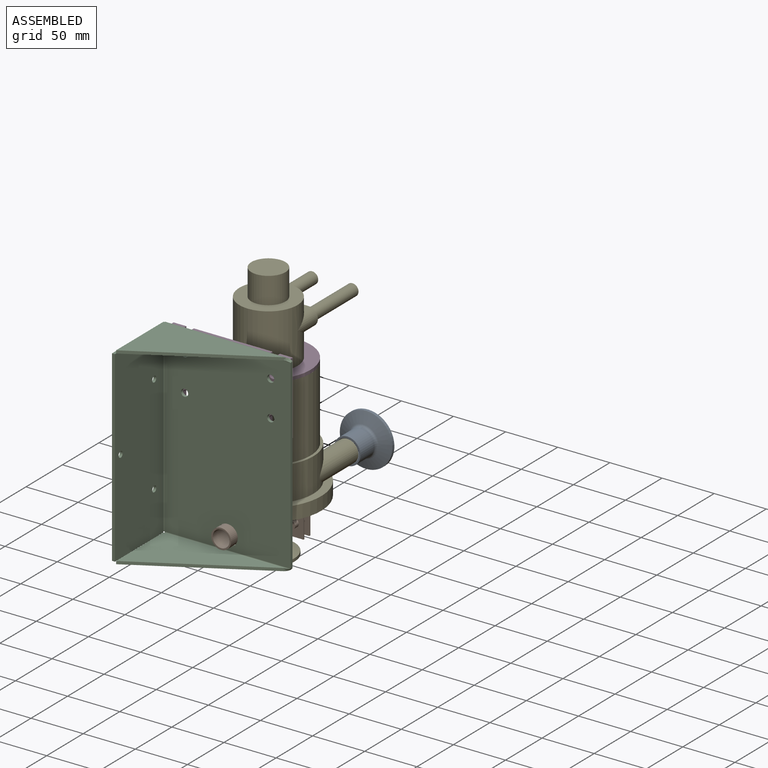
[diagram: assembled view]
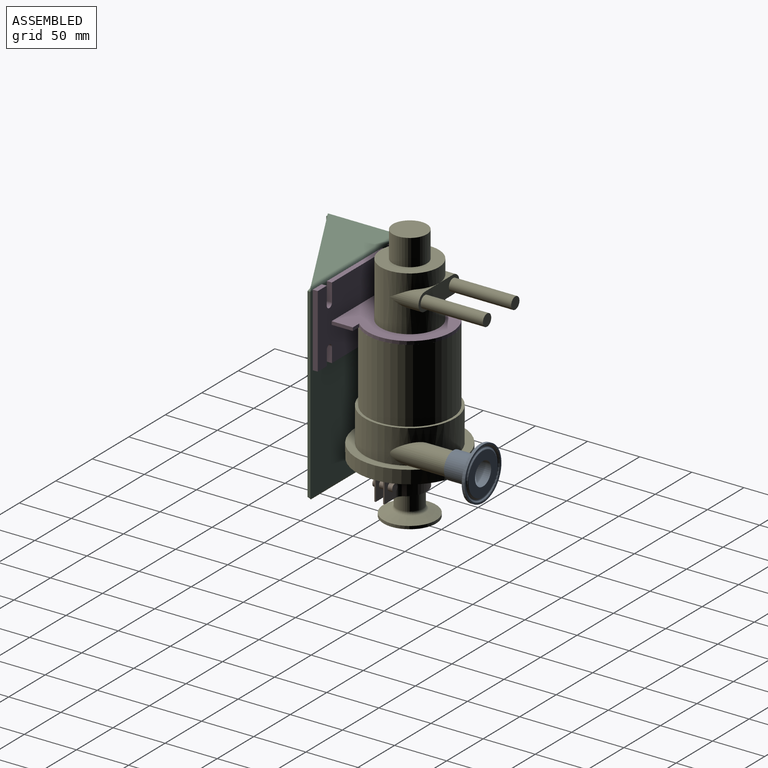
[diagram: assembled view, second angle]
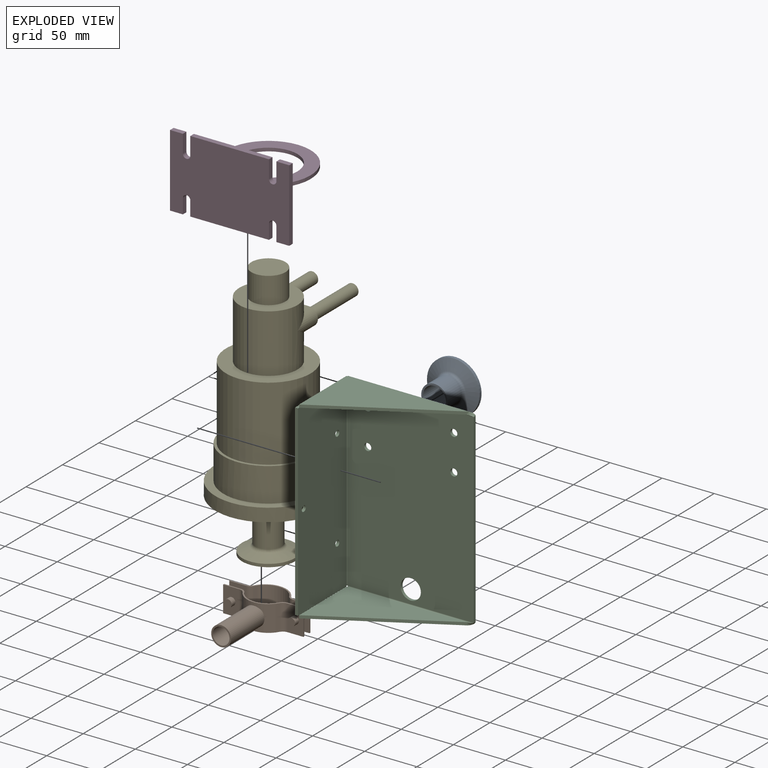
[diagram: exploded view]
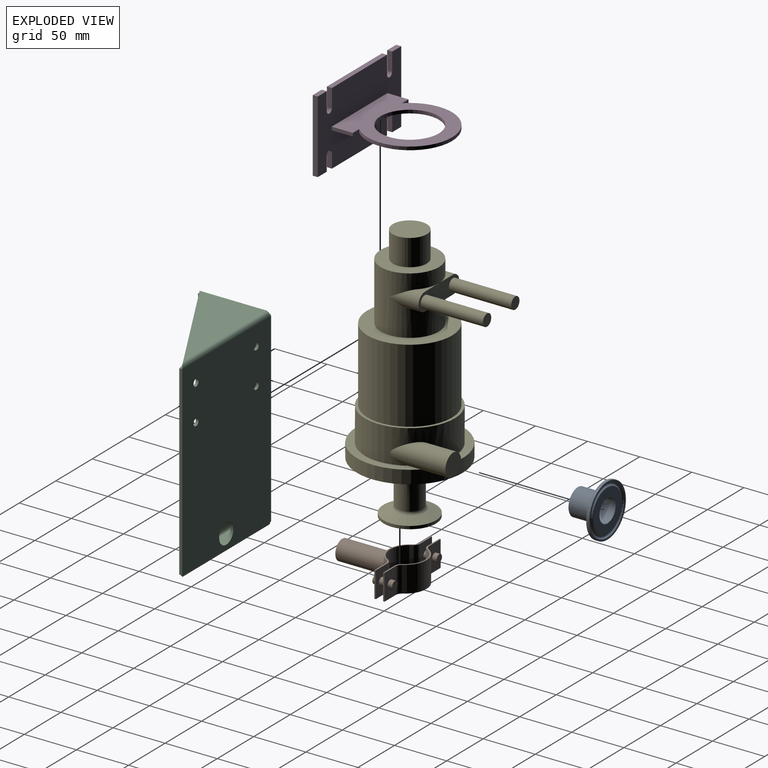
[diagram: exploded view, second angle]
ASSEMBLY  parts=5 mates=4
PART A: 13 faces, bbox 51.5x28.6x51.5 mm
  f0: cylinder r=25.2mm len=50.39mm, axis (0,-1,0), area 450.4mm2, adj f1,f10
  f1: cone r=14.79mm half-angle=70deg, axis (0,-1,0), area 1391.3mm2, adj f0,f2
  f2: torus R=15.88mm, axis (0,-1,0), area 327.4mm2, adj f1,f3
  f3: cylinder r=12.7mm len=25.4mm, axis (0,-1,0), area 1512.8mm2, adj f2,f12
  f4: cylinder r=11.05mm len=28.58mm, axis (0,-1,0), area 1983.8mm2, adj f11,f12
  f5: torus R=19.83mm, axis (0,-1,0), area 117.1mm2, adj f6,f11
  f6: cone r=20.72mm half-angle=23deg, axis (0,1,0), area 55.4mm2, adj f5,f7
  f7: torus R=21.82mm, axis (0,-1,0), area 382.8mm2, adj f6,f8
  f8: cone r=23.08mm half-angle=23deg, axis (0,-1,0), area 61.7mm2, adj f7,f9
  f9: torus R=23.81mm, axis (0,-1,0), area 135.4mm2, adj f8,f10
  f10: plane 50.39x50.39mm, normal (0,-1,0), area 213.6mm2, adj f0,f9
  f11: plane 39.66x39.66mm, normal (0,-1,0), area 851.6mm2, adj f4,f5
  f12: plane 25.4x25.4mm, normal (0,1,0), area 123.2mm2, adj f3,f4
PART B: 43 faces, bbox 76.9x80.7x24.9 mm
  f0: cylinder r=9.53mm len=45.72mm, axis (0,1,0), area 2708.8mm2, adj f1,f2,f4,f5
  f1: plane 12.44x2.31mm, normal (0,1,0), area 15.6mm2, adj f0,f3,f5
  f2: plane 12.44x2.31mm, normal (0,1,0), area 15.6mm2, adj f0,f3,f5
  f3: cylinder r=8.05mm len=45.72mm, axis (0,1,0), area 2284.4mm2, adj f1,f2,f4,f5
  f4: plane 19.05x19.05mm, normal (0,-1,0), area 81.3mm2, adj f0,f3
  f5: cylinder r=20.37mm len=35.28mm, axis (0,0,-1), area 1010.6mm2, adj f0,f1,f2,f3,f11,f12,f17,f18
  f6: cylinder r=19.05mm len=33.55mm, axis (0,0,-1), area 1021.3mm2, adj f7,f16,f17,f18
  f7: cylinder r=6.35mm len=24.89mm, axis (0,0,-1), area 170.2mm2, adj f6,f8,f17,f18
  f8: plane 24.89x16.1mm, normal (0,1,0), area 358.1mm2, adj f7,f9,f17,f18,f38
  f9: plane 24.89x1.32mm, normal (-1,0,0), area 32.9mm2, adj f8,f10,f17,f18
  f10: plane 24.89x15.32mm, normal (0,-1,0), area 338.8mm2, adj f9,f11,f17,f18,f42
  f11: cylinder r=6.35mm len=24.89mm, axis (0,0,-1), area 165.5mm2, adj f5,f10,f17,f18
  f12: cylinder r=6.35mm len=24.89mm, axis (0,0,-1), area 165.5mm2, adj f5,f13,f17,f18
  f13: plane 24.89x15.32mm, normal (0,-1,0), area 338.8mm2, adj f12,f14,f17,f18,f40
  f14: plane 24.89x1.32mm, normal (1,0,0), area 32.9mm2, adj f13,f15,f17,f18
  f15: plane 24.89x16.1mm, normal (0,1,0), area 358.1mm2, adj f14,f16,f17,f18,f19
  f16: cylinder r=6.35mm len=24.89mm, axis (0,0,-1), area 170.2mm2, adj f6,f15,f17,f18
  f17: plane 76.92x14.68mm, normal (0,0,1), area 116.5mm2, adj f5,f6,f7,f8,f9,f10,f11,f12
  f18: plane 76.92x14.68mm, normal (0,0,-1), area 116.5mm2, adj f5,f6,f7,f8,f9,f10,f11,f12
  f19: cylinder r=3.68mm len=7.37mm, axis (0,-1,0), area 161.6mm2, adj f15,f36
  f20: cylinder r=3.68mm len=7.37mm, axis (0,-1,0), area 101.7mm2, adj f21,f34
  f21: plane 7.37x7.37mm, normal (0,1,0), area 42.6mm2, adj f20
  f22: plane 7.37x7.37mm, normal (0,1,0), area 42.6mm2, adj f23
  f23: cylinder r=3.68mm len=7.37mm, axis (0,-1,0), area 101.7mm2, adj f22,f30
  f24: plane 76.92x14.68mm, normal (0,0,-1), area 116.5mm2, adj f26,f27,f28,f29,f30,f31,f32,f33
  f25: plane 76.92x14.68mm, normal (0,0,1), area 116.5mm2, adj f26,f27,f28,f29,f30,f31,f32,f33
  f26: cylinder r=19.05mm len=33.55mm, axis (0,0,-1), area 1021.3mm2, adj f24,f25,f27,f37
  f27: cylinder r=6.35mm len=24.89mm, axis (0,0,-1), area 170.2mm2, adj f24,f25,f26,f28
  f28: plane 24.89x16.1mm, normal (0,-1,0), area 358.1mm2, adj f24,f25,f27,f29,f38
  f29: plane 24.89x1.32mm, normal (-1,0,0), area 32.9mm2, adj f24,f25,f28,f30
  f30: plane 24.89x15.32mm, normal (0,1,0), area 338.8mm2, adj f23,f24,f25,f29,f31
  f31: cylinder r=6.35mm len=24.89mm, axis (0,0,-1), area 165.5mm2, adj f24,f25,f30,f32
  f32: cylinder r=20.37mm len=35.28mm, axis (0,0,-1), area 1062mm2, adj f24,f25,f31,f33
  f33: cylinder r=6.35mm len=24.89mm, axis (0,0,-1), area 165.5mm2, adj f24,f25,f32,f34
  f34: plane 24.89x15.32mm, normal (0,1,0), area 338.8mm2, adj f20,f24,f25,f33,f35
  f35: plane 24.89x1.32mm, normal (1,0,0), area 32.9mm2, adj f24,f25,f34,f36
  f36: plane 24.89x16.1mm, normal (0,-1,0), area 358.1mm2, adj f19,f24,f25,f35,f37
  f37: cylinder r=6.35mm len=24.89mm, axis (0,0,-1), area 170.2mm2, adj f24,f25,f26,f36
  f38: cylinder r=3.68mm len=7.37mm, axis (0,-1,0), area 161.6mm2, adj f8,f28
  f39: plane 7.37x7.37mm, normal (0,-1,0), area 42.6mm2, adj f40
  f40: cylinder r=3.68mm len=7.37mm, axis (0,-1,0), area 116.4mm2, adj f13,f39
  f41: plane 7.37x7.37mm, normal (0,-1,0), area 42.6mm2, adj f42
  f42: cylinder r=3.68mm len=7.37mm, axis (0,-1,0), area 116.4mm2, adj f10,f41
PART C: 40 faces, bbox 124.2x185.4x69.9 mm
  f0: plane 178.3x2.77mm, normal (1,0,0), area 493.6mm2, adj f6,f7,f27,f36
  f1: cylinder r=3.43mm len=6.86mm, axis (0,0,1), area 59.6mm2, adj f6,f7
  f2: cylinder r=3.43mm len=6.86mm, axis (0,0,1), area 59.6mm2, adj f6,f7
  f3: cylinder r=3.43mm len=6.86mm, axis (0,0,1), area 59.6mm2, adj f6,f7
  f4: cylinder r=9.72mm len=19.43mm, axis (0,0,1), area 169mm2, adj f6,f7
  f5: cylinder r=3.43mm len=6.86mm, axis (0,0,1), area 59.6mm2, adj f6,f7
  f6: plane 178.3x120.67mm, normal (0,0,-1), area 21070.4mm2, adj f0,f1,f2,f3,f4,f5,f21,f30
  f7: plane 178.3x120.67mm, normal (0,0,1), area 21070.4mm2, adj f0,f1,f2,f3,f4,f5,f20,f29
  f8: plane 2.77x0.77mm, normal (0,0,1), area 2.1mm2, adj f15,f16,f17,f19
  f9: plane 179.83x2.77mm, normal (0,0,-1), area 497.9mm2, adj f10,f15,f16,f17
  f10: plane 66.29x2.77mm, normal (0,1,0), area 183.5mm2, adj f9,f11,f16,f17
  f11: plane 2.77x0.77mm, normal (0,0,1), area 2.1mm2, adj f10,f16,f17,f18
  f12: cylinder r=2.79mm len=5.59mm, axis (1,0,0), area 48.6mm2, adj f16,f17
  f13: cylinder r=2.79mm len=5.59mm, axis (1,0,0), area 48.6mm2, adj f16,f17
  f14: cylinder r=2.79mm len=5.59mm, axis (1,0,0), area 48.6mm2, adj f16,f17
  f15: plane 66.29x2.77mm, normal (0,-1,0), area 183.5mm2, adj f8,f9,f16,f17
  f16: plane 179.83x66.29mm, normal (1,0,0), area 11847.1mm2, adj f8,f9,f10,f11,f12,f13,f14,f15
  f17: plane 179.83x66.29mm, normal (-1,0,0), area 11847.1mm2, adj f8,f9,f10,f11,f12,f13,f14,f15
  f18: plane 3.56x3.56mm, normal (0,1,0), area 9.5mm2, adj f11,f20,f21,f28
  f19: plane 3.56x3.56mm, normal (0,-1,0), area 9.5mm2, adj f8,f20,f21,f37
  f20: cylinder r=3.56mm len=178.3mm, axis (0,1,0), area 997.7mm2, adj f7,f17,f18,f19
  f21: cylinder r=0.79mm len=178.3mm, axis (0,1,0), area 222.3mm2, adj f6,f16,f18,f19
  f22: plane 2.77x0.77mm, normal (0,0,1), area 2.1mm2, adj f24,f25,f26,f28
  f23: plane 115.1x64.72mm, normal (0.49,0,-0.87), area 365.6mm2, adj f24,f25,f26,f27
  f24: plane 64.72x2.77mm, normal (-1,0,0), area 179.2mm2, adj f22,f23,f25,f26
  f25: plane 115.1x64.72mm, normal (0,-1,0), area 3724.5mm2, adj f22,f23,f24,f30
  f26: plane 115.1x64.72mm, normal (0,1,0), area 3724.5mm2, adj f22,f23,f24,f29
  f27: bspline ~6.34x3.56mm, area 20.8mm2, adj f0,f23,f29,f30
  f28: plane 3.56x3.56mm, normal (-1,0,0), area 9.5mm2, adj f18,f22,f29,f30
  f29: cylinder r=3.56mm len=120.67mm, axis (1,0,0), area 661.9mm2, adj f7,f26,f27,f28
  f30: cylinder r=0.79mm len=120.67mm, axis (1,0,0), area 147.5mm2, adj f6,f25,f27,f28
  f31: plane 2.77x0.77mm, normal (0,0,1), area 2.1mm2, adj f33,f34,f35,f37
  f32: plane 115.1x64.72mm, normal (0.49,0,-0.87), area 365.6mm2, adj f33,f34,f35,f36
  f33: plane 64.72x2.77mm, normal (-1,0,0), area 179.2mm2, adj f31,f32,f34,f35
  f34: plane 115.1x64.72mm, normal (0,1,0), area 3724.5mm2, adj f31,f32,f33,f39
  f35: plane 115.1x64.72mm, normal (0,-1,0), area 3724.5mm2, adj f31,f32,f33,f38
  f36: bspline ~6.34x3.56mm, area 20.7mm2, adj f0,f32,f38,f39
  f37: plane 3.56x3.56mm, normal (-1,0,0), area 9.5mm2, adj f19,f31,f38,f39
  f38: cylinder r=3.56mm len=120.67mm, axis (1,0,0), area 661.9mm2, adj f7,f35,f36,f37
  f39: cylinder r=0.79mm len=120.67mm, axis (1,0,0), area 147.5mm2, adj f6,f34,f36,f37
PART D: 30 faces, bbox 93.7x114.3x69.9 mm
  f0: plane 12.32x4.83mm, normal (0,0,1), area 59.5mm2, adj f4,f5,f16,f27
  f1: plane 75.44x4.83mm, normal (0,0,1), area 364.1mm2, adj f4,f5,f20,f29
  f2: plane 12.32x4.83mm, normal (0,0,-1), area 59.5mm2, adj f4,f5,f16,f25
  f3: plane 75.44x4.83mm, normal (0,0,-1), area 364.1mm2, adj f4,f5,f22,f26
  f4: plane 114.3x69.85mm, normal (1,0,0), area 7460mm2, adj f0,f1,f2,f3,f14,f15,f16,f17
  f5: plane 114.3x69.85mm, normal (-1,0,0), area 7218.1mm2, adj f0,f1,f2,f3,f8,f9,f12,f13
  f6: cylinder r=40.64mm len=81.28mm, axis (0,0,-1), area 601mm2, adj f8,f9,f10,f11
  f7: cylinder r=27.94mm len=55.88mm, axis (0,0,-1), area 557.4mm2, adj f8,f9
  f8: plane 88.9x81.28mm, normal (0,0,1), area 3766.8mm2, adj f5,f6,f7,f10,f11,f12,f13
  f9: plane 88.9x81.28mm, normal (0,0,-1), area 3766.8mm2, adj f5,f6,f7,f10,f11,f12,f13
  f10: plane 8.59x3.18mm, normal (-1,0,0), area 27.3mm2, adj f6,f8,f9,f12
  f11: plane 8.59x3.18mm, normal (-1,0,0), area 27.3mm2, adj f6,f8,f9,f13
  f12: plane 20.32x3.18mm, normal (0,-1,0), area 64.5mm2, adj f5,f8,f9,f10
  f13: plane 20.32x3.18mm, normal (0,1,0), area 64.5mm2, adj f5,f8,f9,f11
  f14: plane 69.85x4.83mm, normal (0,1,0), area 337.1mm2, adj f4,f5,f15,f17
  f15: plane 12.32x4.83mm, normal (0,0,1), area 59.5mm2, adj f4,f5,f14,f19
  f16: plane 69.85x4.83mm, normal (0,-1,0), area 337.1mm2, adj f0,f2,f4,f5
  f17: plane 12.32x4.83mm, normal (0,0,-1), area 59.5mm2, adj f4,f5,f14,f23
  f18: cylinder r=3.56mm len=7.11mm, axis (1,0,0), area 53.9mm2, adj f4,f5,f19,f20
  f19: plane 17.21x4.83mm, normal (0,-1,0), area 83mm2, adj f4,f5,f15,f18
  f20: plane 17.21x4.83mm, normal (0,1,0), area 83mm2, adj f1,f4,f5,f18
  f21: cylinder r=3.56mm len=7.11mm, axis (1,0,0), area 53.9mm2, adj f4,f5,f22,f23
  f22: plane 14.03x4.83mm, normal (0,1,0), area 67.7mm2, adj f3,f4,f5,f21
  f23: plane 14.03x4.83mm, normal (0,-1,0), area 67.7mm2, adj f4,f5,f17,f21
  f24: cylinder r=3.56mm len=7.11mm, axis (1,0,0), area 53.9mm2, adj f4,f5,f25,f26
  f25: plane 14.03x4.83mm, normal (0,1,0), area 67.7mm2, adj f2,f4,f5,f24
  f26: plane 14.03x4.83mm, normal (0,-1,0), area 67.7mm2, adj f3,f4,f5,f24
  f27: plane 17.21x4.83mm, normal (0,1,0), area 83mm2, adj f0,f4,f5,f28
  f28: cylinder r=3.56mm len=7.11mm, axis (1,0,0), area 53.9mm2, adj f4,f5,f27,f29
  f29: plane 17.21x4.83mm, normal (0,-1,0), area 83mm2, adj f1,f4,f5,f28
PART E: 37 faces, bbox 101.6x248.4x138.4 mm
  f0: cylinder r=50.8mm len=101.6mm, axis (0,-1,0), area 4042.6mm2, adj f1,f15,f24
  f1: plane 101.6x101.6mm, normal (0,1,0), area 2144.8mm2, adj f0,f2,f24
  f2: cylinder r=43.18mm len=86.36mm, axis (0,-1,0), area 8254.5mm2, adj f1,f16,f24
  f3: cylinder r=25.2mm len=50.39mm, axis (0,-1,0), area 450.4mm2, adj f4,f13
  f4: cone r=14.79mm half-angle=70deg, axis (0,-1,0), area 1391.3mm2, adj f3,f5
  f5: torus R=15.88mm, axis (0,-1,0), area 327.4mm2, adj f4,f6
  f6: cylinder r=12.7mm len=41.18mm, axis (0,-1,0), area 3286.3mm2, adj f5,f15
  f7: cylinder r=11.05mm len=167.13mm, axis (0,-1,0), area 11602.8mm2, adj f14,f21
  f8: torus R=19.83mm, axis (0,-1,0), area 117.1mm2, adj f9,f14
  f9: cone r=20.72mm half-angle=23deg, axis (0,1,0), area 55.4mm2, adj f8,f10
  f10: torus R=21.82mm, axis (0,-1,0), area 382.8mm2, adj f9,f11
  f11: cone r=23.08mm half-angle=23deg, axis (0,-1,0), area 61.7mm2, adj f10,f12
  f12: torus R=23.81mm, axis (0,-1,0), area 135.4mm2, adj f11,f13
  f13: plane 50.39x50.39mm, normal (0,-1,0), area 213.6mm2, adj f3,f12
  f14: plane 39.66x39.66mm, normal (0,-1,0), area 851.6mm2, adj f7,f8
  f15: plane 101.6x101.6mm, normal (0,-1,0), area 7600.6mm2, adj f0,f6
  f16: plane 86.36x86.36mm, normal (0,1,0), area 668.9mm2, adj f2,f17
  f17: cylinder r=40.64mm len=81.28mm, axis (0,-1,0), area 18160.4mm2, adj f16,f18
  f18: plane 81.28x81.28mm, normal (0,1,0), area 2736.2mm2, adj f17,f20
  f19: plane 55.88x55.88mm, normal (0,1,0), area 1609.3mm2, adj f20,f22
  f20: cylinder r=27.94mm len=55.88mm, axis (0,-1,0), area 8596.1mm2, adj f18,f19,f26,f27,f28,f29,f31,f32
  f21: plane 22.1x22.1mm, normal (0,-1,0), area 383.5mm2, adj f7
  f22: cylinder r=16.38mm len=32.77mm, axis (0,-1,0), area 2614.6mm2, adj f19,f23
  f23: plane 32.77x32.77mm, normal (0,1,0), area 843.2mm2, adj f22
  f24: cylinder r=10.73mm len=53.11mm, axis (0,0,-1), area 2329.4mm2, adj f0,f1,f2,f25
  f25: plane 21.46x21.46mm, normal (0,0,1), area 361.8mm2, adj f24
  f26: cylinder r=8.61mm len=27.94mm, axis (0,0,-1), area 456mm2, adj f20,f27,f29,f30
  f27: plane 19.33x7.77mm, normal (0,1,0), area 46.9mm2, adj f20,f26,f30
  f28: cylinder r=8.61mm len=27.94mm, axis (0,0,-1), area 456mm2, adj f20,f30,f31,f32
  f29: plane 19.33x7.77mm, normal (0,-1,0), area 46.9mm2, adj f20,f26,f30
  f30: plane 55.88x17.22mm, normal (0,0,1), area 693.5mm2, adj f26,f27,f28,f29,f31,f32,f33,f35
  f31: plane 19.33x7.77mm, normal (0,1,0), area 46.9mm2, adj f20,f28,f30
  f32: plane 19.33x7.77mm, normal (0,-1,0), area 46.9mm2, adj f20,f28,f30
  f33: cylinder r=5.71mm len=59.69mm, axis (0,0,-1), area 2143.4mm2, adj f30,f34
  f34: plane 11.43x11.43mm, normal (0,0,1), area 102.6mm2, adj f33
  f35: cylinder r=5.71mm len=59.69mm, axis (0,0,-1), area 2143.4mm2, adj f30,f36
  f36: plane 11.43x11.43mm, normal (0,0,1), area 102.6mm2, adj f35
PLACE A rot(axis=(0,0,1),180deg) t=(-62.22,236.34,-28.1)mm
PLACE B t=(-93.4,125.22,-63.49)mm
PLACE C rot(axis=(-1,0,0),90deg) t=(-160.06,91.18,-80.17)mm
PLACE D rot(axis=(0,0,-1),90deg) t=(-93.4,144.27,66.07)mm
PLACE E rot(axis=(0,0.71,0.71),180deg) t=(-93.4,144.27,-101.07)mm
MATE fastened D.f24 <-> C.f7  axis (0,-1,0) through (-134.67,91.18,46.76)mm
MATE fastened E.f3 <-> B.f6  axis (0,0,-1) through (-93.4,144.27,-70.86)mm
MATE fastened E.f24 <-> A.f0  axis (0,1,0) through (-62.22,207.77,-28.1)mm
MATE fastened E.f20 <-> D.f7  axis (0,0,1) through (-93.4,144.27,66.07)mm
